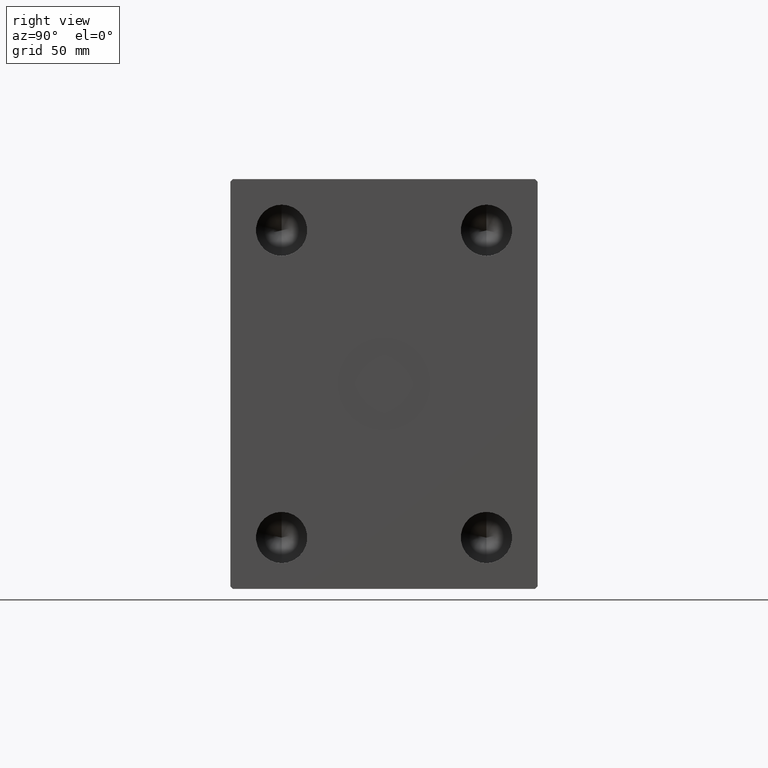
[diagram: clean part render]
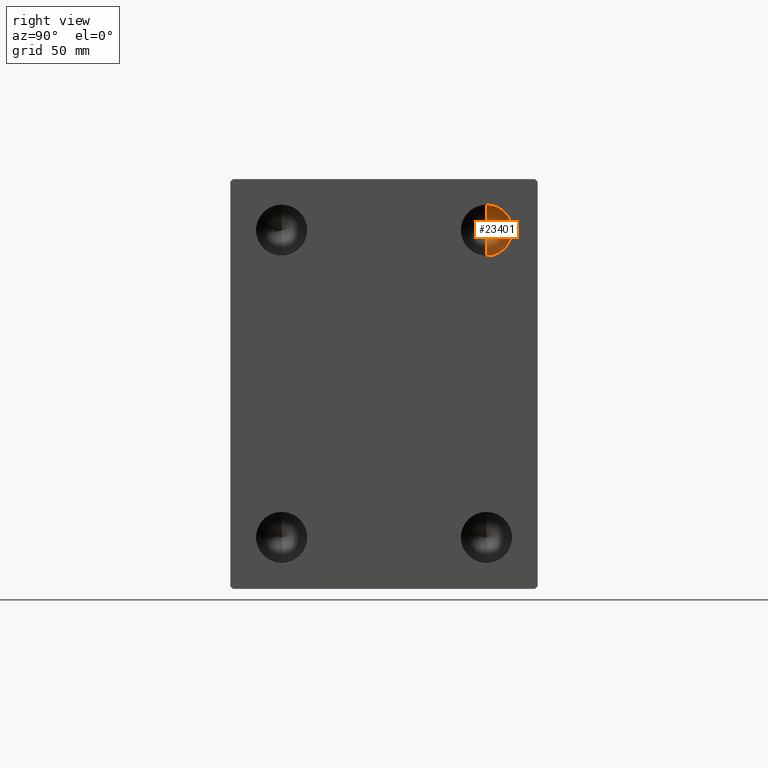
[diagram: same view with one face highlighted and labeled with its STEP entity id]
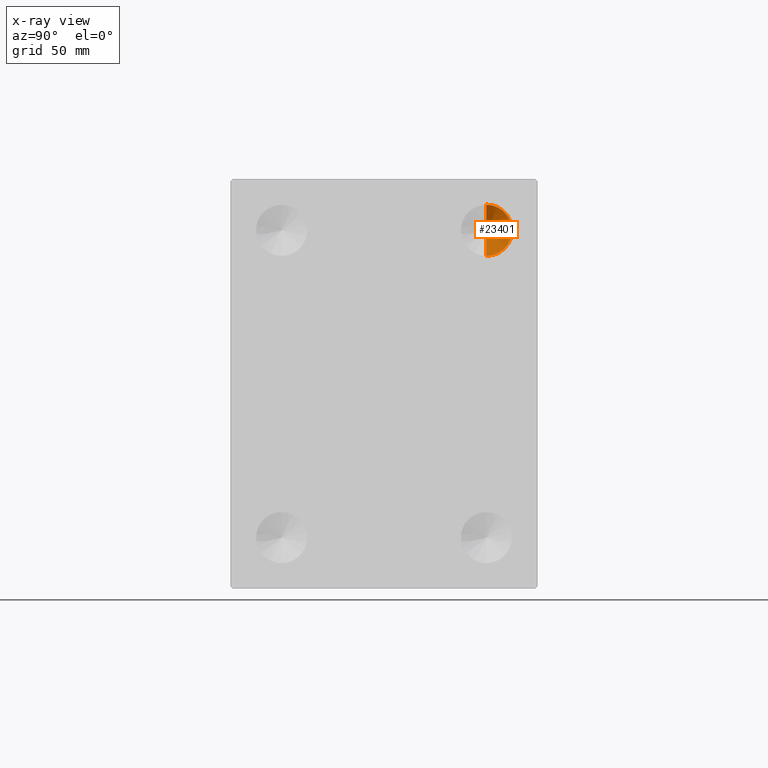
[diagram: x-ray of the same camera — body ghosted, the highlighted face saturated]
A machine part, right view. The second image highlights one B-rep face of the part: STEP entity #23401.
The next image is the same camera in x-ray: the body ghosted, the highlighted face saturated — about 0% of this face is hidden behind the body in this view.
In plain terms, the highlighted conical surface has half-angle 59 deg.
Its self-contained STEP definition (entity closure, byte-faithful):
#397 = VERTEX_POINT ( 'NONE', #36307 ) ;
#658 = EDGE_CURVE ( 'NONE', #397, #18735, #24033, .T. ) ;
#1691 = LINE ( 'NONE', #42401, #29788 ) ;
#3112 = DIRECTION ( 'NONE',  ( 0.5150380749100562650, 1.049727191138617217E-16, 0.8571673007021111124 ) ) ;
#3356 = DIRECTION ( 'NONE',  ( 1.000000000000000000, -0.000000000000000000, -0.000000000000000000 ) ) ;
#5892 = ORIENTED_EDGE ( 'NONE', *, *, #658, .F. ) ;
#6050 = VERTEX_POINT ( 'NONE', #27276 ) ;
#8125 = CIRCLE ( 'NONE', #13789, 9.999999999999994671 ) ;
#8388 = VECTOR ( 'NONE', #3112, 1000.000000000000000 ) ;
#8613 = DIRECTION ( 'NONE',  ( 0.5150380749100562650, 0.000000000000000000, -0.8571673007021111124 ) ) ;
#9133 = ORIENTED_EDGE ( 'NONE', *, *, #32664, .T. ) ;
#10431 = DIRECTION ( 'NONE',  ( 0.000000000000000000, 0.000000000000000000, -1.000000000000000000 ) ) ;
#13373 = DIRECTION ( 'NONE',  ( 0.000000000000000000, 0.000000000000000000, -1.000000000000000000 ) ) ;
#13789 = AXIS2_PLACEMENT_3D ( 'NONE', #20499, #3356, #13373 ) ;
#14099 = EDGE_CURVE ( 'NONE', #397, #6050, #1691, .T. ) ;
#14625 = DIRECTION ( 'NONE',  ( 1.000000000000000000, -0.000000000000000000, -0.000000000000000000 ) ) ;
#14852 = EDGE_LOOP ( 'NONE', ( #5892, #19998, #9133 ) ) ;
#17135 = AXIS2_PLACEMENT_3D ( 'NONE', #30648, #14625, #10431 ) ;
#18735 = VERTEX_POINT ( 'NONE', #19872 ) ;
#19872 = CARTESIAN_POINT ( 'NONE',  ( 167.3300000000000125, 40.00000000000000711, 70.00000000000000000 ) ) ;
#19998 = ORIENTED_EDGE ( 'NONE', *, *, #14099, .T. ) ;
#20499 = CARTESIAN_POINT ( 'NONE',  ( 167.3300000000000125, 40.00000000000000711, 60.00000000000000711 ) ) ;
#23401 = ADVANCED_FACE ( 'NONE', ( #38193 ), #41986, .F. ) ;
#24033 = LINE ( 'NONE', #30246, #8388 ) ;
#27276 = CARTESIAN_POINT ( 'NONE',  ( 167.3300000000000125, 40.00000000000000711, 50.00000000000000711 ) ) ;
#29788 = VECTOR ( 'NONE', #8613, 1000.000000000000000 ) ;
#30246 = CARTESIAN_POINT ( 'NONE',  ( 167.3300000000000125, 40.00000000000000711, 70.00000000000000000 ) ) ;
#30648 = CARTESIAN_POINT ( 'NONE',  ( 167.3300000000000125, 40.00000000000000711, 60.00000000000000711 ) ) ;
#32664 = EDGE_CURVE ( 'NONE', #6050, #18735, #8125, .T. ) ;
#36307 = CARTESIAN_POINT ( 'NONE',  ( 161.3213938097243840, 40.00000000000000000, 60.00000000000000711 ) ) ;
#38193 = FACE_OUTER_BOUND ( 'NONE', #14852, .T. ) ;
#41986 = CONICAL_SURFACE ( 'NONE', #17135, 9.999999999999994671, 1.029744258676652091 ) ;
#42401 = CARTESIAN_POINT ( 'NONE',  ( 167.3300000000000125, 40.00000000000000711, 50.00000000000000711 ) ) ;